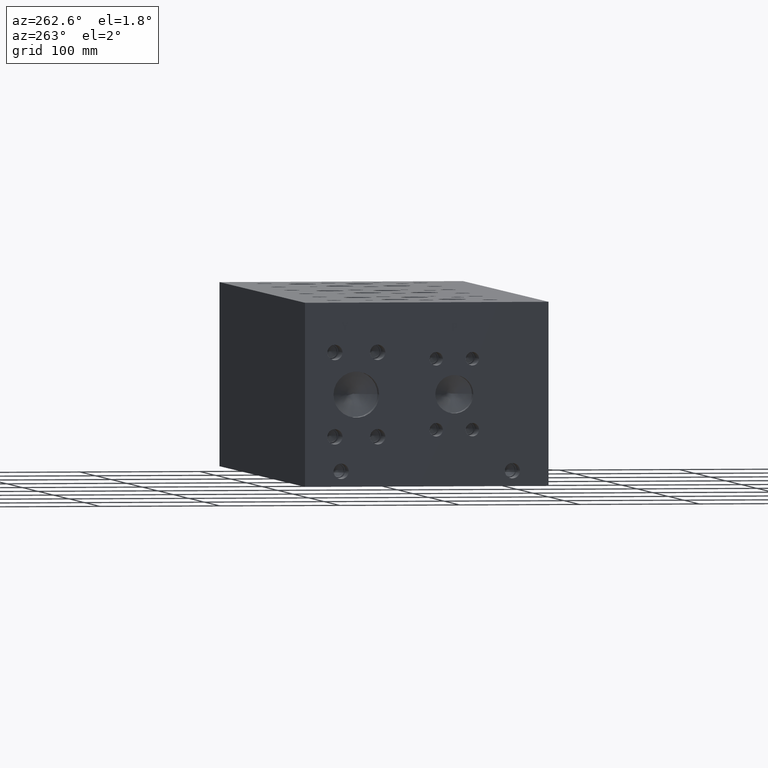
[diagram: clean part render]
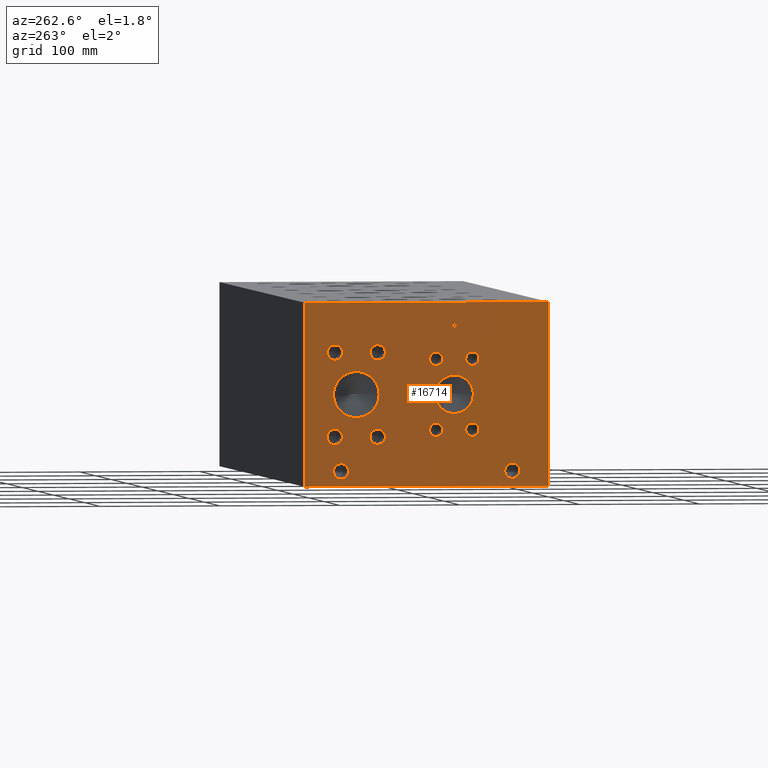
[diagram: same view with one face highlighted and labeled with its STEP entity id]
A machine part, auxiliary view. The second image highlights one B-rep face of the part: STEP entity #16714.
In plain terms, the highlighted planar face has unit normal (-1, 0, 0).
Its self-contained STEP definition (entity closure, byte-faithful):
#379=CIRCLE('',#17549,6.35);
#380=CIRCLE('',#17550,6.35);
#381=CIRCLE('',#17551,6.35);
#382=CIRCLE('',#17552,6.35);
#383=CIRCLE('',#17553,15.875);
#384=CIRCLE('',#17554,15.875);
#385=CIRCLE('',#17555,5.5626);
#386=CIRCLE('',#17556,5.5626);
#387=CIRCLE('',#17557,5.5626);
#388=CIRCLE('',#17558,5.5626);
#389=CIRCLE('',#17559,5.5626);
#390=CIRCLE('',#17560,5.5626);
#391=CIRCLE('',#17561,5.5626);
#392=CIRCLE('',#17562,5.5626);
#393=CIRCLE('',#17563,19.05);
#394=CIRCLE('',#17564,19.05);
#395=CIRCLE('',#17565,6.35);
#396=CIRCLE('',#17566,6.35);
#397=CIRCLE('',#17567,6.35);
#398=CIRCLE('',#17568,6.35);
#399=CIRCLE('',#17569,6.35);
#400=CIRCLE('',#17570,6.35);
#401=CIRCLE('',#17571,6.35);
#402=CIRCLE('',#17572,6.35);
#1001=FACE_BOUND('',#3101,.T.);
#1002=FACE_BOUND('',#3102,.T.);
#1003=FACE_BOUND('',#3103,.T.);
#1004=FACE_BOUND('',#3104,.T.);
#1005=FACE_BOUND('',#3105,.T.);
#1006=FACE_BOUND('',#3106,.T.);
#1007=FACE_BOUND('',#3107,.T.);
#1008=FACE_BOUND('',#3108,.T.);
#1009=FACE_BOUND('',#3109,.T.);
#1010=FACE_BOUND('',#3110,.T.);
#1011=FACE_BOUND('',#3111,.T.);
#1012=FACE_BOUND('',#3112,.T.);
#1013=FACE_BOUND('',#3113,.T.);
#1014=FACE_BOUND('',#3114,.T.);
#1502=PLANE('',#17548);
#2115=FACE_OUTER_BOUND('',#3100,.T.);
#3100=EDGE_LOOP('',(#13758,#13759,#13760,#13761));
#3101=EDGE_LOOP('',(#13762,#13763,#13764,#13765,#13766,#13767,#13768,#13769,
#13770));
#3102=EDGE_LOOP('',(#13771,#13772));
#3103=EDGE_LOOP('',(#13773,#13774));
#3104=EDGE_LOOP('',(#13775,#13776));
#3105=EDGE_LOOP('',(#13777,#13778));
#3106=EDGE_LOOP('',(#13779,#13780));
#3107=EDGE_LOOP('',(#13781,#13782));
#3108=EDGE_LOOP('',(#13783,#13784));
#3109=EDGE_LOOP('',(#13785,#13786));
#3110=EDGE_LOOP('',(#13787,#13788));
#3111=EDGE_LOOP('',(#13789,#13790));
#3112=EDGE_LOOP('',(#13791,#13792));
#3113=EDGE_LOOP('',(#13793,#13794));
#3114=EDGE_LOOP('',(#13795,#13796,#13797,#13798,#13799,#13800,#13801,#13802,
#13803));
#3618=LINE('',#22877,#5044);
#4658=LINE('',#27499,#6084);
#4662=LINE('',#27507,#6088);
#4665=LINE('',#27513,#6091);
#4668=LINE('',#27519,#6094);
#4671=LINE('',#27525,#6097);
#4674=LINE('',#27531,#6100);
#4677=LINE('',#27537,#6103);
#4680=LINE('',#27543,#6106);
#4683=LINE('',#27548,#6109);
#4701=LINE('',#27688,#6127);
#4704=LINE('',#27694,#6130);
#4707=LINE('',#27700,#6133);
#4710=LINE('',#27706,#6136);
#4713=LINE('',#27712,#6139);
#4717=LINE('',#27754,#6143);
#4718=LINE('',#27756,#6144);
#4719=LINE('',#27757,#6145);
#5044=VECTOR('',#18496,10.);
#6084=VECTOR('',#20416,10.);
#6088=VECTOR('',#20422,10.);
#6091=VECTOR('',#20427,10.);
#6094=VECTOR('',#20432,10.);
#6097=VECTOR('',#20437,10.);
#6100=VECTOR('',#20442,10.);
#6103=VECTOR('',#20447,10.);
#6106=VECTOR('',#20452,10.);
#6109=VECTOR('',#20457,10.);
#6127=VECTOR('',#20485,10.);
#6130=VECTOR('',#20490,10.);
#6133=VECTOR('',#20495,10.);
#6136=VECTOR('',#20500,10.);
#6139=VECTOR('',#20505,10.);
#6143=VECTOR('',#20513,10.);
#6144=VECTOR('',#20514,10.);
#6145=VECTOR('',#20515,10.);
#6731=B_SPLINE_CURVE_WITH_KNOTS('',2,(#27655,#27656,#27657,#27658),
 .UNSPECIFIED.,.F.,.F.,(3,1,3),(0.,1.,2.),.UNSPECIFIED.);
#6733=B_SPLINE_CURVE_WITH_KNOTS('',2,(#27676,#27677,#27678,#27679),
 .UNSPECIFIED.,.F.,.F.,(3,1,3),(0.,1.,2.),.UNSPECIFIED.);
#6735=B_SPLINE_CURVE_WITH_KNOTS('',2,(#27725,#27726,#27727,#27728),
 .UNSPECIFIED.,.F.,.F.,(3,1,3),(0.,1.,2.),.UNSPECIFIED.);
#6737=B_SPLINE_CURVE_WITH_KNOTS('',2,(#27743,#27744,#27745,#27746),
 .UNSPECIFIED.,.F.,.F.,(3,1,3),(0.,1.,2.),.UNSPECIFIED.);
#6787=VERTEX_POINT('',#22870);
#6790=VERTEX_POINT('',#22875);
#7755=VERTEX_POINT('',#27497);
#7756=VERTEX_POINT('',#27498);
#7759=VERTEX_POINT('',#27506);
#7761=VERTEX_POINT('',#27512);
#7763=VERTEX_POINT('',#27518);
#7765=VERTEX_POINT('',#27524);
#7767=VERTEX_POINT('',#27530);
#7769=VERTEX_POINT('',#27536);
#7771=VERTEX_POINT('',#27542);
#7787=VERTEX_POINT('',#27653);
#7788=VERTEX_POINT('',#27654);
#7791=VERTEX_POINT('',#27675);
#7793=VERTEX_POINT('',#27687);
#7795=VERTEX_POINT('',#27693);
#7797=VERTEX_POINT('',#27699);
#7799=VERTEX_POINT('',#27705);
#7801=VERTEX_POINT('',#27711);
#7803=VERTEX_POINT('',#27724);
#7805=VERTEX_POINT('',#27753);
#7806=VERTEX_POINT('',#27755);
#7807=VERTEX_POINT('',#27758);
#7808=VERTEX_POINT('',#27759);
#7809=VERTEX_POINT('',#27762);
#7810=VERTEX_POINT('',#27763);
#7811=VERTEX_POINT('',#27766);
#7812=VERTEX_POINT('',#27767);
#7813=VERTEX_POINT('',#27770);
#7814=VERTEX_POINT('',#27771);
#7815=VERTEX_POINT('',#27774);
#7816=VERTEX_POINT('',#27775);
#7817=VERTEX_POINT('',#27778);
#7818=VERTEX_POINT('',#27779);
#7819=VERTEX_POINT('',#27782);
#7820=VERTEX_POINT('',#27783);
#7821=VERTEX_POINT('',#27786);
#7822=VERTEX_POINT('',#27787);
#7823=VERTEX_POINT('',#27790);
#7824=VERTEX_POINT('',#27791);
#7825=VERTEX_POINT('',#27794);
#7826=VERTEX_POINT('',#27795);
#7827=VERTEX_POINT('',#27798);
#7828=VERTEX_POINT('',#27799);
#7829=VERTEX_POINT('',#27802);
#7830=VERTEX_POINT('',#27803);
#8503=EDGE_CURVE('',#6787,#6790,#3618,.T.);
#9905=EDGE_CURVE('',#7755,#7756,#4658,.T.);
#9909=EDGE_CURVE('',#7759,#7755,#4662,.T.);
#9912=EDGE_CURVE('',#7761,#7759,#4665,.T.);
#9915=EDGE_CURVE('',#7763,#7761,#4668,.T.);
#9918=EDGE_CURVE('',#7765,#7763,#4671,.T.);
#9921=EDGE_CURVE('',#7767,#7765,#4674,.T.);
#9924=EDGE_CURVE('',#7769,#7767,#4677,.T.);
#9927=EDGE_CURVE('',#7771,#7769,#4680,.T.);
#9930=EDGE_CURVE('',#7756,#7771,#4683,.T.);
#9953=EDGE_CURVE('',#7787,#7788,#6731,.T.);
#9957=EDGE_CURVE('',#7791,#7787,#6733,.T.);
#9960=EDGE_CURVE('',#7793,#7791,#4701,.T.);
#9963=EDGE_CURVE('',#7795,#7793,#4704,.T.);
#9966=EDGE_CURVE('',#7797,#7795,#4707,.T.);
#9969=EDGE_CURVE('',#7799,#7797,#4710,.T.);
#9972=EDGE_CURVE('',#7801,#7799,#4713,.T.);
#9975=EDGE_CURVE('',#7803,#7801,#6735,.T.);
#9978=EDGE_CURVE('',#7788,#7803,#6737,.T.);
#9980=EDGE_CURVE('',#7805,#6787,#4717,.T.);
#9981=EDGE_CURVE('',#7806,#6790,#4718,.T.);
#9982=EDGE_CURVE('',#7805,#7806,#4719,.T.);
#9983=EDGE_CURVE('',#7807,#7808,#379,.T.);
#9984=EDGE_CURVE('',#7808,#7807,#380,.T.);
#9985=EDGE_CURVE('',#7809,#7810,#381,.T.);
#9986=EDGE_CURVE('',#7810,#7809,#382,.T.);
#9987=EDGE_CURVE('',#7811,#7812,#383,.T.);
#9988=EDGE_CURVE('',#7812,#7811,#384,.T.);
#9989=EDGE_CURVE('',#7813,#7814,#385,.T.);
#9990=EDGE_CURVE('',#7814,#7813,#386,.T.);
#9991=EDGE_CURVE('',#7815,#7816,#387,.T.);
#9992=EDGE_CURVE('',#7816,#7815,#388,.T.);
#9993=EDGE_CURVE('',#7817,#7818,#389,.T.);
#9994=EDGE_CURVE('',#7818,#7817,#390,.T.);
#9995=EDGE_CURVE('',#7819,#7820,#391,.T.);
#9996=EDGE_CURVE('',#7820,#7819,#392,.T.);
#9997=EDGE_CURVE('',#7821,#7822,#393,.T.);
#9998=EDGE_CURVE('',#7822,#7821,#394,.T.);
#9999=EDGE_CURVE('',#7823,#7824,#395,.T.);
#10000=EDGE_CURVE('',#7824,#7823,#396,.T.);
#10001=EDGE_CURVE('',#7825,#7826,#397,.T.);
#10002=EDGE_CURVE('',#7826,#7825,#398,.T.);
#10003=EDGE_CURVE('',#7827,#7828,#399,.T.);
#10004=EDGE_CURVE('',#7828,#7827,#400,.T.);
#10005=EDGE_CURVE('',#7829,#7830,#401,.T.);
#10006=EDGE_CURVE('',#7830,#7829,#402,.T.);
#13758=ORIENTED_EDGE('',*,*,#9980,.T.);
#13759=ORIENTED_EDGE('',*,*,#8503,.T.);
#13760=ORIENTED_EDGE('',*,*,#9981,.F.);
#13761=ORIENTED_EDGE('',*,*,#9982,.F.);
#13762=ORIENTED_EDGE('',*,*,#9905,.T.);
#13763=ORIENTED_EDGE('',*,*,#9930,.T.);
#13764=ORIENTED_EDGE('',*,*,#9927,.T.);
#13765=ORIENTED_EDGE('',*,*,#9924,.T.);
#13766=ORIENTED_EDGE('',*,*,#9921,.T.);
#13767=ORIENTED_EDGE('',*,*,#9918,.T.);
#13768=ORIENTED_EDGE('',*,*,#9915,.T.);
#13769=ORIENTED_EDGE('',*,*,#9912,.T.);
#13770=ORIENTED_EDGE('',*,*,#9909,.T.);
#13771=ORIENTED_EDGE('',*,*,#9983,.T.);
#13772=ORIENTED_EDGE('',*,*,#9984,.T.);
#13773=ORIENTED_EDGE('',*,*,#9985,.T.);
#13774=ORIENTED_EDGE('',*,*,#9986,.T.);
#13775=ORIENTED_EDGE('',*,*,#9987,.T.);
#13776=ORIENTED_EDGE('',*,*,#9988,.T.);
#13777=ORIENTED_EDGE('',*,*,#9989,.T.);
#13778=ORIENTED_EDGE('',*,*,#9990,.T.);
#13779=ORIENTED_EDGE('',*,*,#9991,.T.);
#13780=ORIENTED_EDGE('',*,*,#9992,.T.);
#13781=ORIENTED_EDGE('',*,*,#9993,.T.);
#13782=ORIENTED_EDGE('',*,*,#9994,.T.);
#13783=ORIENTED_EDGE('',*,*,#9995,.T.);
#13784=ORIENTED_EDGE('',*,*,#9996,.T.);
#13785=ORIENTED_EDGE('',*,*,#9997,.T.);
#13786=ORIENTED_EDGE('',*,*,#9998,.T.);
#13787=ORIENTED_EDGE('',*,*,#9999,.T.);
#13788=ORIENTED_EDGE('',*,*,#10000,.T.);
#13789=ORIENTED_EDGE('',*,*,#10001,.T.);
#13790=ORIENTED_EDGE('',*,*,#10002,.T.);
#13791=ORIENTED_EDGE('',*,*,#10003,.T.);
#13792=ORIENTED_EDGE('',*,*,#10004,.T.);
#13793=ORIENTED_EDGE('',*,*,#10005,.T.);
#13794=ORIENTED_EDGE('',*,*,#10006,.T.);
#13795=ORIENTED_EDGE('',*,*,#9953,.T.);
#13796=ORIENTED_EDGE('',*,*,#9978,.T.);
#13797=ORIENTED_EDGE('',*,*,#9975,.T.);
#13798=ORIENTED_EDGE('',*,*,#9972,.T.);
#13799=ORIENTED_EDGE('',*,*,#9969,.T.);
#13800=ORIENTED_EDGE('',*,*,#9966,.T.);
#13801=ORIENTED_EDGE('',*,*,#9963,.T.);
#13802=ORIENTED_EDGE('',*,*,#9960,.T.);
#13803=ORIENTED_EDGE('',*,*,#9957,.T.);
#16714=ADVANCED_FACE('',(#2115,#1001,#1002,#1003,#1004,#1005,#1006,#1007,
#1008,#1009,#1010,#1011,#1012,#1013,#1014),#1502,.T.);
#17548=AXIS2_PLACEMENT_3D('',#27752,#20511,#20512);
#17549=AXIS2_PLACEMENT_3D('',#27760,#20516,#20517);
#17550=AXIS2_PLACEMENT_3D('',#27761,#20518,#20519);
#17551=AXIS2_PLACEMENT_3D('',#27764,#20520,#20521);
#17552=AXIS2_PLACEMENT_3D('',#27765,#20522,#20523);
#17553=AXIS2_PLACEMENT_3D('',#27768,#20524,#20525);
#17554=AXIS2_PLACEMENT_3D('',#27769,#20526,#20527);
#17555=AXIS2_PLACEMENT_3D('',#27772,#20528,#20529);
#17556=AXIS2_PLACEMENT_3D('',#27773,#20530,#20531);
#17557=AXIS2_PLACEMENT_3D('',#27776,#20532,#20533);
#17558=AXIS2_PLACEMENT_3D('',#27777,#20534,#20535);
#17559=AXIS2_PLACEMENT_3D('',#27780,#20536,#20537);
#17560=AXIS2_PLACEMENT_3D('',#27781,#20538,#20539);
#17561=AXIS2_PLACEMENT_3D('',#27784,#20540,#20541);
#17562=AXIS2_PLACEMENT_3D('',#27785,#20542,#20543);
#17563=AXIS2_PLACEMENT_3D('',#27788,#20544,#20545);
#17564=AXIS2_PLACEMENT_3D('',#27789,#20546,#20547);
#17565=AXIS2_PLACEMENT_3D('',#27792,#20548,#20549);
#17566=AXIS2_PLACEMENT_3D('',#27793,#20550,#20551);
#17567=AXIS2_PLACEMENT_3D('',#27796,#20552,#20553);
#17568=AXIS2_PLACEMENT_3D('',#27797,#20554,#20555);
#17569=AXIS2_PLACEMENT_3D('',#27800,#20556,#20557);
#17570=AXIS2_PLACEMENT_3D('',#27801,#20558,#20559);
#17571=AXIS2_PLACEMENT_3D('',#27804,#20560,#20561);
#17572=AXIS2_PLACEMENT_3D('',#27805,#20562,#20563);
#18496=DIRECTION('',(0.,0.,1.));
#20416=DIRECTION('',(0.,-1.,0.));
#20422=DIRECTION('',(0.,-0.512401080946023,0.858746256029887));
#20427=DIRECTION('',(0.,-0.505352400516564,-0.862913061259445));
#20432=DIRECTION('',(0.,-1.,0.));
#20437=DIRECTION('',(0.,0.509099449897527,0.860707703064191));
#20442=DIRECTION('',(0.,0.,1.));
#20447=DIRECTION('',(0.,1.,0.));
#20452=DIRECTION('',(0.,0.,-1.));
#20457=DIRECTION('',(0.,0.518329263750976,-0.855181135397274));
#20485=DIRECTION('',(0.,-1.,0.));
#20490=DIRECTION('',(0.,-2.79741238752512E-15,1.));
#20495=DIRECTION('',(0.,1.,0.));
#20500=DIRECTION('',(0.,7.50436279609996E-15,-1.));
#20505=DIRECTION('',(0.,1.,2.48345819151512E-14));
#20511=DIRECTION('center_axis',(-1.,0.,0.));
#20512=DIRECTION('ref_axis',(0.,-1.,0.));
#20513=DIRECTION('',(0.,-1.,0.));
#20514=DIRECTION('',(0.,-1.,0.));
#20515=DIRECTION('',(0.,0.,1.));
#20516=DIRECTION('center_axis',(1.,0.,0.));
#20517=DIRECTION('ref_axis',(0.,1.,0.));
#20518=DIRECTION('center_axis',(1.,0.,0.));
#20519=DIRECTION('ref_axis',(0.,1.,0.));
#20520=DIRECTION('center_axis',(1.,0.,0.));
#20521=DIRECTION('ref_axis',(0.,1.,0.));
#20522=DIRECTION('center_axis',(1.,0.,0.));
#20523=DIRECTION('ref_axis',(0.,1.,0.));
#20524=DIRECTION('center_axis',(1.,0.,0.));
#20525=DIRECTION('ref_axis',(0.,1.,0.));
#20526=DIRECTION('center_axis',(1.,0.,0.));
#20527=DIRECTION('ref_axis',(0.,1.,0.));
#20528=DIRECTION('center_axis',(1.,0.,0.));
#20529=DIRECTION('ref_axis',(0.,1.,0.));
#20530=DIRECTION('center_axis',(1.,0.,0.));
#20531=DIRECTION('ref_axis',(0.,1.,0.));
#20532=DIRECTION('center_axis',(1.,0.,0.));
#20533=DIRECTION('ref_axis',(0.,1.,0.));
#20534=DIRECTION('center_axis',(1.,0.,0.));
#20535=DIRECTION('ref_axis',(0.,1.,0.));
#20536=DIRECTION('center_axis',(1.,0.,0.));
#20537=DIRECTION('ref_axis',(0.,1.,0.));
#20538=DIRECTION('center_axis',(1.,0.,0.));
#20539=DIRECTION('ref_axis',(0.,1.,0.));
#20540=DIRECTION('center_axis',(1.,0.,0.));
#20541=DIRECTION('ref_axis',(0.,1.,0.));
#20542=DIRECTION('center_axis',(1.,0.,0.));
#20543=DIRECTION('ref_axis',(0.,1.,0.));
#20544=DIRECTION('center_axis',(1.,0.,0.));
#20545=DIRECTION('ref_axis',(0.,1.,0.));
#20546=DIRECTION('center_axis',(1.,0.,0.));
#20547=DIRECTION('ref_axis',(0.,1.,0.));
#20548=DIRECTION('center_axis',(1.,0.,0.));
#20549=DIRECTION('ref_axis',(0.,1.,0.));
#20550=DIRECTION('center_axis',(1.,0.,0.));
#20551=DIRECTION('ref_axis',(0.,1.,0.));
#20552=DIRECTION('center_axis',(1.,0.,0.));
#20553=DIRECTION('ref_axis',(0.,1.,0.));
#20554=DIRECTION('center_axis',(1.,0.,0.));
#20555=DIRECTION('ref_axis',(0.,1.,0.));
#20556=DIRECTION('center_axis',(1.,0.,0.));
#20557=DIRECTION('ref_axis',(0.,1.,0.));
#20558=DIRECTION('center_axis',(1.,0.,0.));
#20559=DIRECTION('ref_axis',(0.,1.,0.));
#20560=DIRECTION('center_axis',(1.,0.,0.));
#20561=DIRECTION('ref_axis',(0.,1.,0.));
#20562=DIRECTION('center_axis',(1.,0.,0.));
#20563=DIRECTION('ref_axis',(0.,1.,0.));
#22870=CARTESIAN_POINT('',(0.,0.,0.));
#22875=CARTESIAN_POINT('',(0.,0.,152.4));
#22877=CARTESIAN_POINT('',(0.,0.,0.));
#27497=CARTESIAN_POINT('',(0.,168.04986837741,135.731249904633));
#27498=CARTESIAN_POINT('',(0.,167.154487515655,135.731249904633));
#27499=CARTESIAN_POINT('',(0.,185.624934188705,135.731249904633));
#27506=CARTESIAN_POINT('',(0.,169.717129292403,132.937044111913));
#27507=CARTESIAN_POINT('',(0.,203.360320538696,76.5535476713681));
#27512=CARTESIAN_POINT('',(0.,171.353515005266,135.731249904633));
#27513=CARTESIAN_POINT('',(0.,145.825494284883,92.1409503726555));
#27518=CARTESIAN_POINT('',(0.,172.290062803194,135.731249904633));
#27519=CARTESIAN_POINT('',(0.,187.745031401597,135.731249904633));
#27524=CARTESIAN_POINT('',(0.,170.144236255194,132.103413654417));
#27525=CARTESIAN_POINT('',(0.,145.485048668281,90.41342025208));
#27530=CARTESIAN_POINT('',(0.,170.144236255194,129.38125));
#27531=CARTESIAN_POINT('',(0.,170.144236255194,64.690625));
#27536=CARTESIAN_POINT('',(0.,169.300314063655,129.38125));
#27537=CARTESIAN_POINT('',(0.,186.250157031827,129.38125));
#27542=CARTESIAN_POINT('',(0.,169.300314063655,132.190893393784));
#27543=CARTESIAN_POINT('',(0.,169.300314063655,66.095446696892));
#27548=CARTESIAN_POINT('',(0.,202.079059341435,78.1098939906369));
#27653=CARTESIAN_POINT('',(0.,77.0619327976406,134.541268143971));
#27654=CARTESIAN_POINT('',(0.,76.305490345468,133.023237372604));
#27655=CARTESIAN_POINT('Ctrl Pts',(0.,77.0619327976406,134.541268143971));
#27656=CARTESIAN_POINT('Ctrl Pts',(0.,76.7068679731514,134.299412393956));
#27657=CARTESIAN_POINT('Ctrl Pts',(0.,76.305490345468,133.553261675827));
#27658=CARTESIAN_POINT('Ctrl Pts',(0.,76.305490345468,133.023237372604));
#27675=CARTESIAN_POINT('',(0.,78.7240478456117,134.937499904633));
#27676=CARTESIAN_POINT('Ctrl Pts',(0.,78.7240478456117,134.937499904633));
#27677=CARTESIAN_POINT('Ctrl Pts',(0.,78.1580024732376,134.937499904633));
#27678=CARTESIAN_POINT('Ctrl Pts',(0.,77.3655389519139,134.752248691856));
#27679=CARTESIAN_POINT('Ctrl Pts',(0.,77.0619327976406,134.541268143971));
#27687=CARTESIAN_POINT('',(0.,80.3192666223022,134.937499904633));
#27688=CARTESIAN_POINT('',(0.,141.759633311151,134.937499904633));
#27693=CARTESIAN_POINT('',(0.,80.3192666223022,128.5875));
#27694=CARTESIAN_POINT('',(0.,80.3192666223024,64.2937499999998));
#27699=CARTESIAN_POINT('',(0.,79.4753444307627,128.5875));
#27700=CARTESIAN_POINT('',(0.,141.337672215381,128.5875));
#27705=CARTESIAN_POINT('',(0.,79.4753444307627,130.954598829928));
#27706=CARTESIAN_POINT('',(0.,79.4753444307632,65.4772994149635));
#27711=CARTESIAN_POINT('',(0.,78.7600689147628,130.954598829928));
#27712=CARTESIAN_POINT('',(0.,140.98003445738,130.954598829929));
#27724=CARTESIAN_POINT('',(0.,76.8612439837989,131.61326980869));
#27725=CARTESIAN_POINT('Ctrl Pts',(0.,76.8612439837989,131.61326980869));
#27726=CARTESIAN_POINT('Ctrl Pts',(0.,77.1905794731802,131.289080186331));
#27727=CARTESIAN_POINT('Ctrl Pts',(0.,78.0808144679139,130.954598829928));
#27728=CARTESIAN_POINT('Ctrl Pts',(0.,78.7600689147628,130.954598829928));
#27743=CARTESIAN_POINT('Ctrl Pts',(0.,76.305490345468,133.023237372604));
#27744=CARTESIAN_POINT('Ctrl Pts',(0.,76.305490345468,132.611568010877));
#27745=CARTESIAN_POINT('Ctrl Pts',(0.,76.5988047656982,131.87056315977));
#27746=CARTESIAN_POINT('Ctrl Pts',(0.,76.8612439837989,131.61326980869));
#27752=CARTESIAN_POINT('Origin',(0.,203.2,0.));
#27753=CARTESIAN_POINT('',(0.,203.2,0.));
#27754=CARTESIAN_POINT('',(0.,203.2,0.));
#27755=CARTESIAN_POINT('',(0.,203.2,152.4));
#27756=CARTESIAN_POINT('',(0.,203.2,152.4));
#27757=CARTESIAN_POINT('',(0.,203.2,0.));
#27758=CARTESIAN_POINT('',(0.,179.3748,12.7));
#27759=CARTESIAN_POINT('',(0.,166.6748,12.7));
#27760=CARTESIAN_POINT('Origin',(0.,173.0248,12.7));
#27761=CARTESIAN_POINT('Origin',(0.,173.0248,12.7));
#27762=CARTESIAN_POINT('',(0.,36.5252,12.7));
#27763=CARTESIAN_POINT('',(0.,23.8252,12.7));
#27764=CARTESIAN_POINT('Origin',(0.,30.1752,12.7));
#27765=CARTESIAN_POINT('Origin',(0.,30.1752,12.7));
#27766=CARTESIAN_POINT('',(0.,94.4626,76.2));
#27767=CARTESIAN_POINT('',(0.,62.7126,76.2));
#27768=CARTESIAN_POINT('Origin',(0.,78.5876,76.2));
#27769=CARTESIAN_POINT('Origin',(0.,78.5876,76.2));
#27770=CARTESIAN_POINT('',(0.,99.2378,46.8376));
#27771=CARTESIAN_POINT('',(0.,88.1126,46.8376));
#27772=CARTESIAN_POINT('Origin',(0.,93.6752,46.8376));
#27773=CARTESIAN_POINT('Origin',(0.,93.6752,46.8376));
#27774=CARTESIAN_POINT('',(0.,69.06768,105.5624));
#27775=CARTESIAN_POINT('',(0.,57.94248,105.5624));
#27776=CARTESIAN_POINT('Origin',(0.,63.50508,105.5624));
#27777=CARTESIAN_POINT('Origin',(0.,63.50508,105.5624));
#27778=CARTESIAN_POINT('',(0.,99.2378,105.56748));
#27779=CARTESIAN_POINT('',(0.,88.1126,105.56748));
#27780=CARTESIAN_POINT('Origin',(0.,93.6752,105.56748));
#27781=CARTESIAN_POINT('Origin',(0.,93.6752,105.56748));
#27782=CARTESIAN_POINT('',(0.,69.06768,46.83252));
#27783=CARTESIAN_POINT('',(0.,57.94248,46.83252));
#27784=CARTESIAN_POINT('Origin',(0.,63.50508,46.83252));
#27785=CARTESIAN_POINT('Origin',(0.,63.50508,46.83252));
#27786=CARTESIAN_POINT('',(0.,179.4002,76.2));
#27787=CARTESIAN_POINT('',(0.,141.3002,76.2));
#27788=CARTESIAN_POINT('Origin',(0.,160.3502,76.2));
#27789=CARTESIAN_POINT('Origin',(0.,160.3502,76.2));
#27790=CARTESIAN_POINT('',(0.,184.5564,111.125));
#27791=CARTESIAN_POINT('',(2.22044604925031E-15,171.8564,111.125));
#27792=CARTESIAN_POINT('Origin',(0.,178.2064,111.125));
#27793=CARTESIAN_POINT('Origin',(0.,178.2064,111.125));
#27794=CARTESIAN_POINT('',(0.,148.844,41.275));
#27795=CARTESIAN_POINT('',(2.22044604925031E-15,136.144,41.275));
#27796=CARTESIAN_POINT('Origin',(0.,142.494,41.275));
#27797=CARTESIAN_POINT('Origin',(0.,142.494,41.275));
#27798=CARTESIAN_POINT('',(0.,148.844,111.125));
#27799=CARTESIAN_POINT('',(2.22044604925031E-15,136.144,111.125));
#27800=CARTESIAN_POINT('Origin',(0.,142.494,111.125));
#27801=CARTESIAN_POINT('Origin',(0.,142.494,111.125));
#27802=CARTESIAN_POINT('',(0.,184.5564,41.275));
#27803=CARTESIAN_POINT('',(2.22044604925031E-15,171.8564,41.275));
#27804=CARTESIAN_POINT('Origin',(0.,178.2064,41.275));
#27805=CARTESIAN_POINT('Origin',(0.,178.2064,41.275));